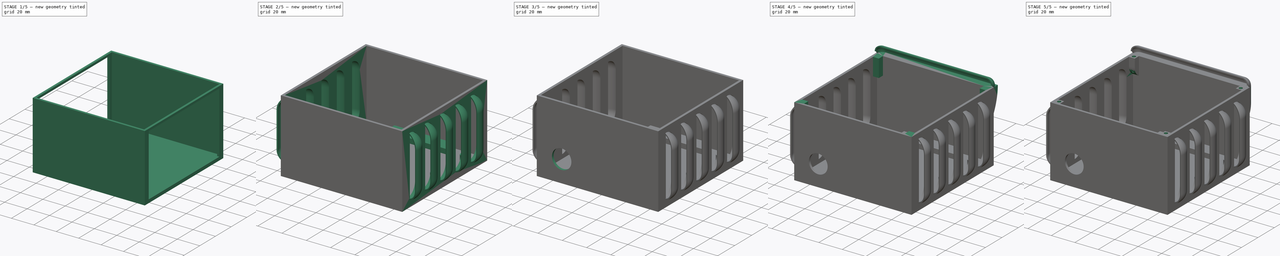
[diagram: build sequence overview — one tinted view per stage of 5, left to right]
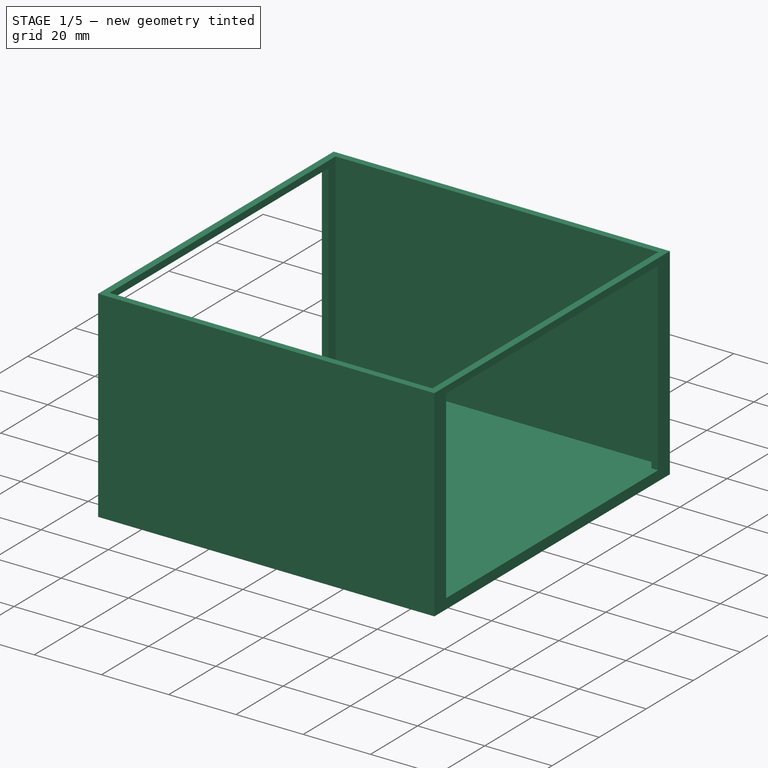
[diagram: stage 1 of 5 — iso view after this stage's code; geometry added in this stage tinted green]
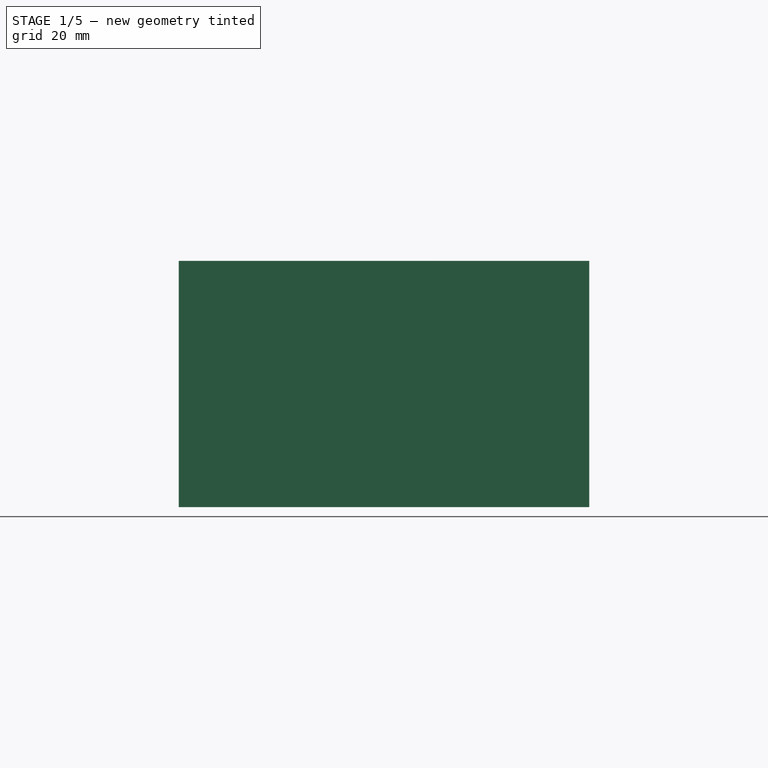
[diagram: stage 1 of 5 — front view after this stage's code; geometry added in this stage tinted green]
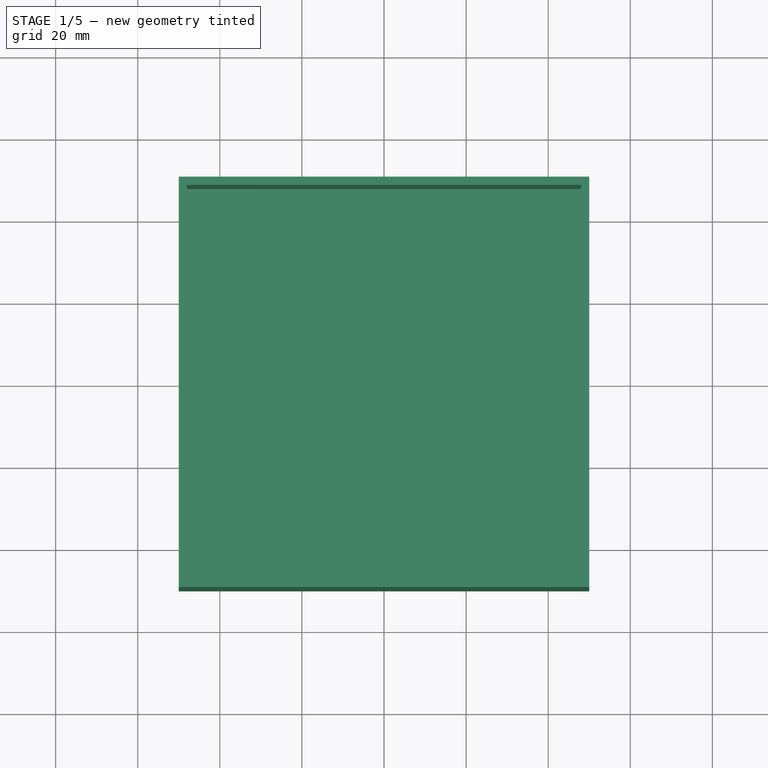
[diagram: stage 1 of 5 — top view after this stage's code; geometry added in this stage tinted green]
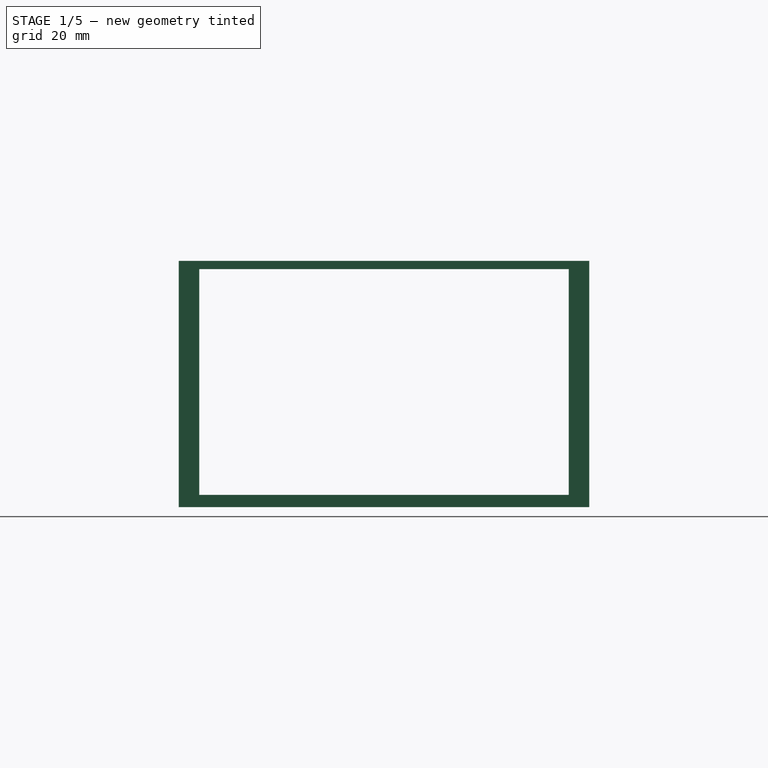
[diagram: stage 1 of 5 — right view after this stage's code; geometry added in this stage tinted green]
FCSTD DOCUMENT  (FreeCAD 1.0R39285 (Git))
Label: Enclosure box
License: All rights reserved
LicenseURL: https://en.wikipedia.org/wiki/All_rights_reserved
objects: Sketcher::SketchObject×24, PartDesign::Pocket×12, PartDesign::Pad×11, PartDesign::Revolution×2, PartDesign::Hole×2, PartDesign::Body×2, PartDesign::Mirrored×1, PartDesign::LinearPattern×1, PartDesign::MultiTransform×1
note: 137 computed .brp shape members not serialized (recipe doc carries the construction recipe); baked Part::Feature solids carry a one-line shape summary decoded from their .brp

FEATURE [Sketcher::SketchObject] Sketch006
  ArcFitTolerance = 1e-06
  AttachmentSupport = -> [XY_Plane001]
  FullyConstrained = true
  MakeInternals = false
  MapMode = 5
  sketch-geometry (4):
    g0: LineSegment StartX=-50 StartY=50 StartZ=0 EndX=-50 EndY=-50 EndZ=0
    g1: LineSegment StartX=-50 StartY=-50 StartZ=0 EndX=50 EndY=-50 EndZ=0
    g2: LineSegment StartX=50 StartY=-50 StartZ=0 EndX=50 EndY=50 EndZ=0
    g3: LineSegment StartX=50 StartY=50 StartZ=0 EndX=-50 EndY=50 EndZ=0
  constraints (10):
    c: Coincident(g0,g1)
    c: Coincident(g1,g2)
    c: Coincident(g2,g3)
    c: Coincident(g3,g0)
    c: Vertical(g2)
    c: Horizontal(g1)
    c: Distance(g0,g2) = 100
    c: Distance(g1,g3) = 100
    c: Symmetric(g2,g0,g-2)
    c: Symmetric(g0,g0,g-1)
FEATURE [PartDesign::Pad] Pad003
  Direction = (0,0,1)
  Length = 60
  Length2 = 10
  Profile = -> Sketch006
  ReferenceAxis = -> Sketch006 [N_Axis]
  Refine = true
  Suppressed = false
  Type = 0
FEATURE [Sketcher::SketchObject] Sketch007
  ArcFitTolerance = 1e-06
  AttachmentSupport = -> [Pad003]
  ExternalGeometry = -> [Pad003]
  FullyConstrained = true
  MakeInternals = false
  MapMode = 5
  Placement = pos=(0,0,60) rot=(0,0,1;0rad)
  sketch-geometry (4):
    g0: LineSegment StartX=-48 StartY=48 StartZ=0 EndX=-48 EndY=-48 EndZ=0
    g1: LineSegment StartX=-48 StartY=-48 StartZ=0 EndX=48 EndY=-48 EndZ=0
    g2: LineSegment StartX=48 StartY=-48 StartZ=0 EndX=48 EndY=48 EndZ=0
    g3: LineSegment StartX=48 StartY=48 StartZ=0 EndX=-48 EndY=48 EndZ=0
  constraints (10):
    c: Coincident(g0,g1)
    c: Coincident(g1,g2)
    c: Coincident(g2,g3)
    c: Coincident(g3,g0)
    c: Vertical(g2)
    c: Horizontal(g1)
    c: DistanceY(g0,g-4) = 2
    c: Symmetric(g0,g2,g-2)
    c: Symmetric(g0,g0,g-1)
    c: DistanceX(g-4,g0) = 2
FEATURE [PartDesign::Pocket] Pocket002
  BaseFeature = -> Pad003
  Direction = (0,0,-1)
  Length = 57
  Length2 = 5
  Profile = -> Sketch007
  ReferenceAxis = -> Sketch007 [N_Axis]
  Refine = true
  Suppressed = false
  Type = 0
FEATURE [Sketcher::SketchObject] Sketch008
  ArcFitTolerance = 1e-06
  AttachmentSupport = -> [Pocket002]
  ExternalGeometry = -> [Pocket002]
  FullyConstrained = true
  MakeInternals = false
  MapMode = 5
  Placement = pos=(-50,0,0) rot=(0.57735,-0.57735,-0.57735;2.0944rad)
  sketch-geometry (4):
    g0: LineSegment StartX=-45 StartY=58 StartZ=0 EndX=-45 EndY=3 EndZ=0
    g1: LineSegment StartX=-45 StartY=3 StartZ=0 EndX=45 EndY=3 EndZ=0
    g2: LineSegment StartX=45 StartY=3 StartZ=0 EndX=45 EndY=58 EndZ=0
    g3: LineSegment StartX=45 StartY=58 StartZ=0 EndX=-45 EndY=58 EndZ=0
  constraints (11):
    c: Coincident(g0,g1)
    c: Coincident(g1,g2)
    c: Coincident(g2,g3)
    c: Coincident(g3,g0)
    c: Vertical(g0)
    c: Vertical(g2)
    c: Horizontal(g1)
    c: Distance(g1,g-1) = 3
    c: Distance(g-3,g3) = 2
    c: Distance(g0,g-4) = 5
    c: Symmetric(g0,g2,g-2)
FEATURE [PartDesign::Pocket] Pocket003
  BaseFeature = -> Pocket002
  Direction = (1,0,0)
  Length = 100
  Length2 = 5
  Profile = -> Sketch008
  ReferenceAxis = -> Sketch008 [N_Axis]
  Refine = true
  Suppressed = false
  Type = 0
FEATURE [PartDesign::Body] Body001  label="Main Box"
  AllowCompound = false
  Group = -> [Sketch006,Pad003,Sketch007,Pocket002,Sketch008,Pocket003,Sketch009,Pad004,Sketch010,Revolution001,MultiTransform,Mirrored001,LinearPattern001,Sketch011,Pad005,Sketch012,Sketch013,Pad006,Pocket004,Sketch014,Pad007,Sketch015,Pad008,Hole,Hole001,Sketch016,Pocket005,Sketch017,Pad009,Sketch018,Revolution002,Sketch019,Pocket006,Sketch020,Pad010,Sketch021,Pad011,Sketch022,Pocket007,Sketch023,Pocket008,+7 more]
  Origin = -> Origin001
  Tip = -> Pocket012
FEATURE [Sketcher::SketchObject] Sketch
  ArcFitTolerance = 1e-06
  AttachmentSupport = -> [XY_Plane]
  FullyConstrained = true
  MakeInternals = false
  MapMode = 5
  sketch-geometry (4):
    g0: LineSegment StartX=-50 StartY=50 StartZ=0 EndX=-50 EndY=-50 EndZ=0
    g1: LineSegment StartX=-50 StartY=-50 StartZ=0 EndX=50 EndY=-50 EndZ=0
    g2: LineSegment StartX=50 StartY=-50 StartZ=0 EndX=50 EndY=50 EndZ=0
    g3: LineSegment StartX=50 StartY=50 StartZ=0 EndX=-50 EndY=50 EndZ=0
  constraints (10):
    c: Coincident(g0,g1)
    c: Coincident(g1,g2)
    c: Coincident(g2,g3)
    c: Coincident(g3,g0)
    c: Vertical(g2)
    c: Horizontal(g1)
    c: Distance(g0,g2) = 100
    c: Distance(g1,g3) = 100
    c: Symmetric(g0,g2,g-2)
    c: Symmetric(g0,g0,g-1)
FEATURE [PartDesign::Pad] Pad
  Direction = (0,0,1)
  Length = 1
  Length2 = 10
  Profile = -> Sketch
  ReferenceAxis = -> Sketch [N_Axis]
  Refine = true
  Suppressed = false
  Type = 0
FEATURE [Sketcher::SketchObject] Sketch027
  ArcFitTolerance = 1e-06
  AttachmentSupport = -> [Pad]
  ExternalGeometry = -> [Pad]
  FullyConstrained = true
  MakeInternals = false
  MapMode = 5
  Placement = pos=(0,0,1) rot=(0,0,1;0rad)
  sketch-geometry (12):
    g0: LineSegment StartX=-47.85 StartY=-42.75 StartZ=0 EndX=-47.85 EndY=42.75 EndZ=0
    g1: LineSegment StartX=-47.85 StartY=42.75 StartZ=0 EndX=-42.75 EndY=42.75 EndZ=0
    g2: LineSegment StartX=-42.75 StartY=42.75 StartZ=0 EndX=-42.75 EndY=47.85 EndZ=0
    g3: LineSegment StartX=-42.75 StartY=47.85 StartZ=0 EndX=42.75 EndY=47.85 EndZ=0
    g4: LineSegment StartX=42.75 StartY=47.85 StartZ=0 EndX=42.75 EndY=42.75 EndZ=0
    g5: LineSegment StartX=42.75 StartY=42.75 StartZ=0 EndX=47.85 EndY=42.75 EndZ=0
    g6: LineSegment StartX=47.85 StartY=42.75 StartZ=0 EndX=47.85 EndY=-42.75 EndZ=0
    g7: LineSegment StartX=47.85 StartY=-42.75 StartZ=0 EndX=42.75 EndY=-42.75 EndZ=0
    g8: LineSegment StartX=42.75 StartY=-42.75 StartZ=0 EndX=42.75 EndY=-47.85 EndZ=0
    g9: LineSegment StartX=42.75 StartY=-47.85 StartZ=0 EndX=-42.75 EndY=-47.85 EndZ=0
    g10: LineSegment StartX=-42.75 StartY=-47.85 StartZ=0 EndX=-42.75 EndY=-42.75 EndZ=0
    g11: LineSegment StartX=-42.75 StartY=-42.75 StartZ=0 EndX=-47.85 EndY=-42.75 EndZ=0
  constraints (34):
    c: Coincident(g0,g1)
    c: Horizontal(g1)
    c: Coincident(g1,g2)
    c: Vertical(g2)
    c: Coincident(g2,g3)
    c: Horizontal(g3)
    c: Coincident(g3,g4)
    c: Coincident(g4,g5)
    c: Coincident(g5,g6)
    c: Vertical(g6)
    c: Coincident(g6,g7)
    c: Coincident(g7,g8)
    c: Coincident(g8,g9)
    c: Coincident(g9,g10)
    c: Vertical(g10)
    c: Coincident(g10,g11)
    c: Coincident(g11,g0)
    c: Horizontal(g11)
    c: Horizontal(g5)
    c: Horizontal(g7)
    c: Vertical(g8)
    c: Vertical(g4)
    c: DistanceY(g2,g2) = 5.1
    c: DistanceX(g1,g1) = 5.1
    c: Symmetric(g9,g8,g-2)
    c: Symmetric(g0,g0,g-1)
    c: Distance(g-3,g0) = 2.15
    c: Distance(g-4,g9) = 2.15
    c: Equal(g2,g4)
    c: Equal(g4,g8)
    c: Equal(g8,g10)
    c: Equal(g1,g5)
    c: Equal(g5,g7)
    c: Equal(g7,g11)
FEATURE [PartDesign::Pad] Pad012
  BaseFeature = -> Pad
  Direction = (0,0,1)
  Length = 0.75
  Length2 = 10
  Profile = -> Sketch027
  ReferenceAxis = -> Sketch027 [N_Axis]
  Refine = true
  Suppressed = false
  Type = 0
FEATURE [Sketcher::SketchObject] Sketch028
  ArcFitTolerance = 1e-06
  AttachmentSupport = -> [Pad012]
  ExternalGeometry = -> [Pad012]
  FullyConstrained = true
  MakeInternals = false
  MapMode = 5
  Placement = pos=(0,0,1) rot=(0,0,1;0rad)
  sketch-geometry (4):
    g0: Circle CenterX=-45.25 CenterY=45.25 CenterZ=0 NormalX=0 NormalY=0 NormalZ=1 AngleXU=0 Radius=1.55
    g1: Circle CenterX=45.25 CenterY=45.25 CenterZ=0 NormalX=0 NormalY=0 NormalZ=1 AngleXU=0 Radius=1.55
    g2: Circle CenterX=45.25 CenterY=-45.25 CenterZ=0 NormalX=0 NormalY=0 NormalZ=1 AngleXU=0 Radius=1.55
    g3: Circle CenterX=-45.25 CenterY=-45.25 CenterZ=0 NormalX=0 NormalY=0 NormalZ=1 AngleXU=0 Radius=1.55
  constraints (12):
    c: Diameter(g0) = 3.1
    c: Diameter(g1) = 3.1
    c: Diameter(g2) = 3.1
    c: Diameter(g3) = 3.1
    c: Distance(g0,g-3) = 2.5
    c: Distance(g0,g-4) = 2.5
    c: Horizontal(g0,g1)
    c: Horizontal(g2,g3)
    c: Vertical(g3,g0)
    c: Vertical(g1,g2)
    c: Distance(g1,g-5) = 2.5
    c: Distance(g3,g-6) = 2.5
FEATURE [PartDesign::Pocket] Pocket
  BaseFeature = -> Pad012
  Direction = (0,0,-1)
  Length = 5
  Length2 = 5
  Profile = -> Sketch028
  ReferenceAxis = -> Sketch028 [N_Axis]
  Refine = true
  Suppressed = false
  Type = 0
FEATURE [PartDesign::Body] Body
  AllowCompound = false
  Group = -> [Sketch,Pad,Sketch027,Pad012,Sketch028,Pocket]
  Origin = -> Origin
  Tip = -> Pocket
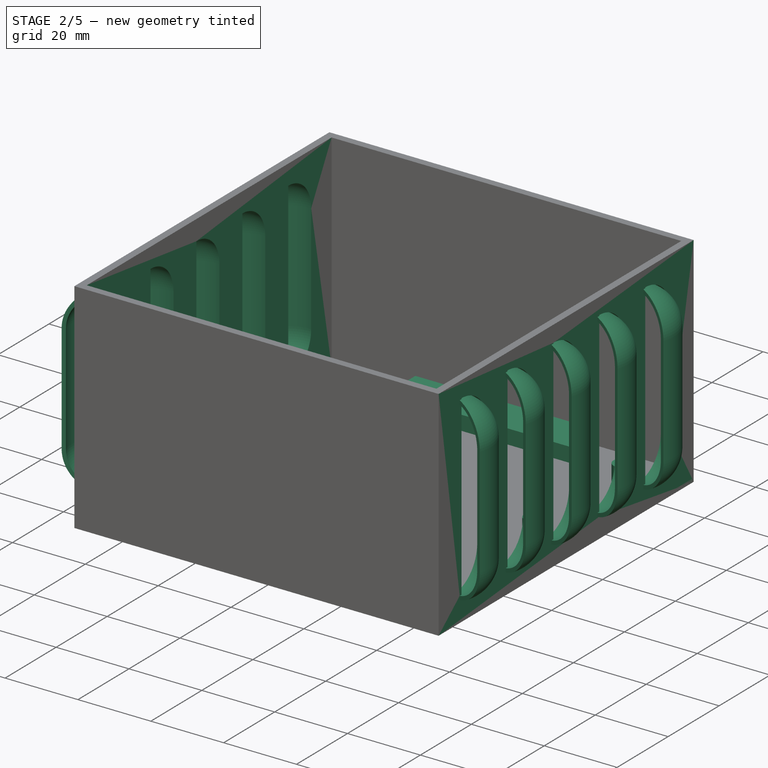
[diagram: stage 2 of 5 — iso view after this stage's code; geometry added in this stage tinted green]
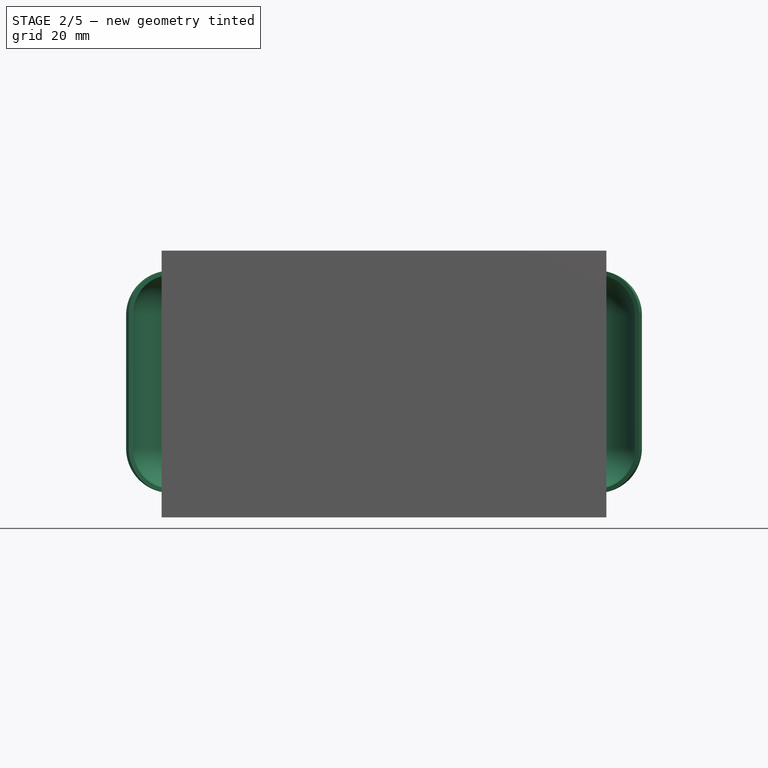
[diagram: stage 2 of 5 — front view after this stage's code; geometry added in this stage tinted green]
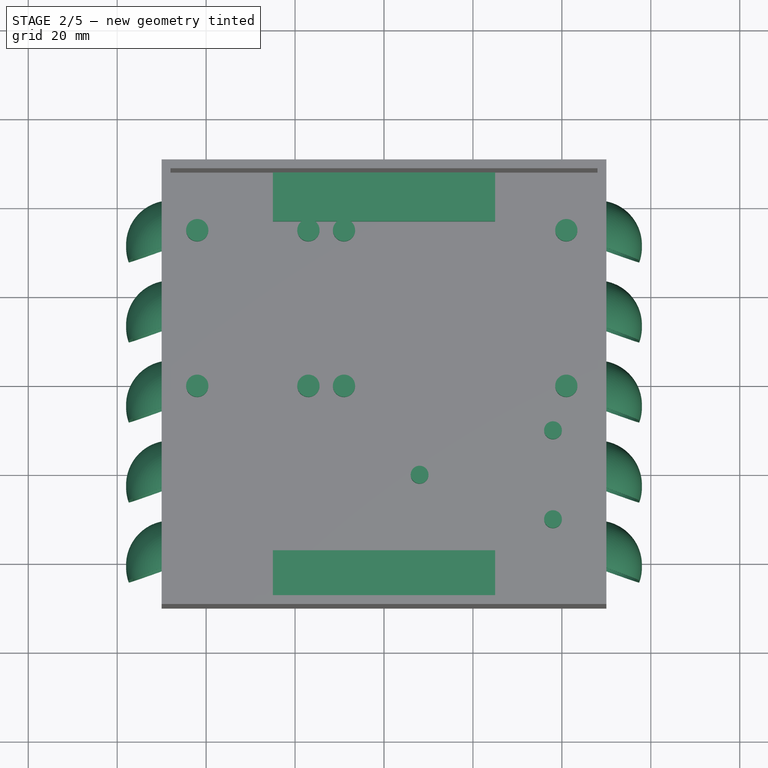
[diagram: stage 2 of 5 — top view after this stage's code; geometry added in this stage tinted green]
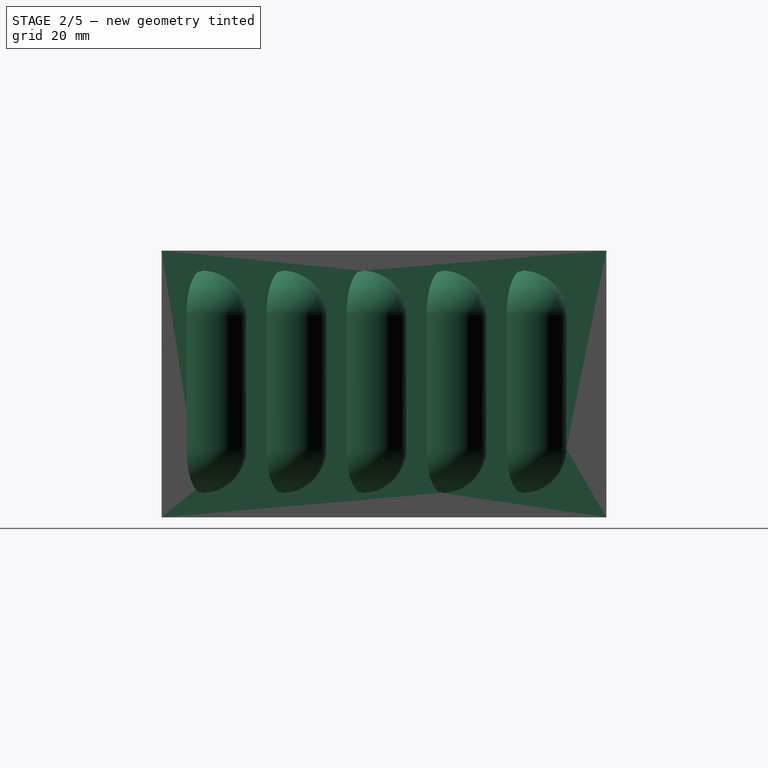
[diagram: stage 2 of 5 — right view after this stage's code; geometry added in this stage tinted green]
FEATURE [Sketcher::SketchObject] Sketch009
  ArcFitTolerance = 1e-06
  AttachmentSupport = -> [Pocket003]
  ExternalGeometry = -> [Pocket003]
  FullyConstrained = true
  MakeInternals = false
  MapMode = 5
  Placement = pos=(-50,0,0) rot=(0.57735,-0.57735,-0.57735;2.0944rad)
  sketch-geometry (8):
    g0: LineSegment StartX=45 StartY=58 StartZ=0 EndX=27 EndY=58 EndZ=0
    g1: LineSegment StartX=27 StartY=58 StartZ=0 EndX=27 EndY=3 EndZ=0
    g2: LineSegment StartX=27 StartY=3 StartZ=0 EndX=45 EndY=3 EndZ=0
    g3: LineSegment StartX=45 StartY=3 StartZ=0 EndX=45 EndY=58 EndZ=0
    g4: LineSegment StartX=41 StartY=5.5 StartZ=0 EndX=41 EndY=55.5 EndZ=0
    g5: ArcOfCircle CenterX=41 CenterY=45.5 CenterZ=0 NormalX=0 NormalY=0 NormalZ=1 AngleXU=0 Radius=10 StartAngle=1.5708 EndAngle=3.14159
    g6: LineSegment StartX=31 StartY=45.5 StartZ=0 EndX=31 EndY=15.5 EndZ=0
    g7: ArcOfCircle CenterX=41 CenterY=15.5 CenterZ=0 NormalX=0 NormalY=0 NormalZ=1 AngleXU=0 Radius=10 StartAngle=3.14159 EndAngle=4.71239
  constraints (21):
    c: Coincident(g0,g1)
    c: Coincident(g1,g2)
    c: Coincident(g2,g3)
    c: Coincident(g3,g0)
    c: Horizontal(g0)
    c: Horizontal(g2)
    c: Vertical(g1)
    c: Distance(g1,g3) = 18
    c: Coincident(g0,g-4)
    c: Coincident(g2,g-4)
    c: Vertical(g4)
    c: Perpendicular(g4,g5) = 1.5708
    c: Tangent(g5,g6) = -1.5708
    c: Tangent(g6,g7) = -1.5708
    c: Coincident(g7,g4)
    c: PointOnObject(g7,g4)
    c: Vertical(g6)
    c: DistanceX(g4,g0) = 4
    c: Radius(g5) = 10
    c: DistanceY(g4,g4) = 50
    c: DistanceY(g4,g0) = 2.5
FEATURE [PartDesign::Pad] Pad004
  BaseFeature = -> Pocket003
  Direction = (-1,0,0)
  Length = 2
  Length2 = 10
  Profile = -> Sketch009
  ReferenceAxis = -> Sketch009 [N_Axis]
  Refine = true
  Reversed = true
  Suppressed = false
  Type = 0
FEATURE [Sketcher::SketchObject] Sketch010
  ArcFitTolerance = 1e-06
  AttachmentSupport = -> [Pad004]
  ExternalGeometry = -> [Pad004]
  FullyConstrained = true
  MakeInternals = false
  MapMode = 5
  Placement = pos=(-48,0,0) rot=(0.57735,0.57735,0.57735;2.0944rad)
  sketch-geometry (8):
    g0: LineSegment StartX=-41 StartY=54.5 StartZ=0 EndX=-41 EndY=55.5 EndZ=0
    g1: ArcOfCircle CenterX=-41 CenterY=45.5 CenterZ=0 NormalX=0 NormalY=0 NormalZ=1 AngleXU=0 Radius=10 StartAngle=0 EndAngle=1.5708
    g2: LineSegment StartX=-31 StartY=45.5 StartZ=0 EndX=-31 EndY=15.5 EndZ=0
    g3: ArcOfCircle CenterX=-41 CenterY=15.5 CenterZ=0 NormalX=0 NormalY=0 NormalZ=1 AngleXU=0 Radius=10 StartAngle=4.71239 EndAngle=6.28319
    g4: LineSegment StartX=-41 StartY=5.5 StartZ=0 EndX=-41 EndY=6.5 EndZ=0
    g5: ArcOfCircle CenterX=-41 CenterY=15.5 CenterZ=0 NormalX=0 NormalY=0 NormalZ=1 AngleXU=0 Radius=9 StartAngle=4.71239 EndAngle=6.28319
    g6: LineSegment StartX=-32 StartY=15.5 StartZ=0 EndX=-32 EndY=45.5 EndZ=0
    g7: ArcOfCircle CenterX=-41 CenterY=45.5 CenterZ=0 NormalX=0 NormalY=0 NormalZ=1 AngleXU=0 Radius=9 StartAngle=0 EndAngle=1.5708
  constraints (20):
    c: PointOnObject(g0,g-3)
    c: Coincident(g0,g-3)
    c: Perpendicular(g0,g1) = 1.5708
    c: Tangent(g1,g2) = 1.5708
    c: Tangent(g2,g3) = 1.5708
    c: Coincident(g3,g-3)
    c: Coincident(g3,g4)
    c: Perpendicular(g4,g5) = 4.71239
    c: Tangent(g5,g6) = -1.5708
    c: Tangent(g6,g7) = -1.5708
    c: Coincident(g7,g0)
    c: Vertical(g6)
    c: Vertical(g2)
    c: PointOnObject(g4,g-3)
    c: Horizontal(g5,g2)
    c: Horizontal(g6,g1)
    c: DistanceY(g0,g0) = 1
    c: Equal(g4,g0)
    c: Radius(g3) = 10
    c: PointOnObject(g7,g-3)
FEATURE [PartDesign::Revolution] Revolution001
  Angle = 110
  Angle2 = 60
  Axis = (0,0,1)
  Base = (-48,-41,5.5)
  BaseFeature = -> Pad004
  Profile = -> Sketch010
  ReferenceAxis = -> Pad004 [Edge55]
  Refine = true
  Suppressed = false
  Type = 0
FEATURE [PartDesign::Mirrored] Mirrored001
  MirrorPlane = -> YZ_Plane001
  Refine = true
  Suppressed = false
  TransformMode = 0
FEATURE [PartDesign::LinearPattern] LinearPattern001
  Direction = -> Y_Axis001
  Length = 72
  Mode = 1
  Occurrences = 5
  Offset = 18
  Refine = true
  Suppressed = false
  TransformMode = 0
FEATURE [PartDesign::MultiTransform] MultiTransform
  BaseFeature = -> Revolution001
  Originals = -> [Revolution001,Pad004]
  Refine = true
  Suppressed = false
  TransformMode = 0
  Transformations = -> [Mirrored001,LinearPattern001]
FEATURE [Sketcher::SketchObject] Sketch011
  ArcFitTolerance = 1e-06
  AttachmentSupport = -> [MultiTransform]
  ExternalGeometry = -> [MultiTransform]
  FullyConstrained = true
  MakeInternals = false
  MapMode = 5
  Placement = pos=(0,0,3) rot=(0,0,1;0rad)
  sketch-geometry (11):
    g0: Circle CenterX=41 CenterY=4e-16 CenterZ=0 NormalX=0 NormalY=0 NormalZ=1 AngleXU=0 Radius=2.5
    g1: Circle CenterX=-9 CenterY=4e-16 CenterZ=0 NormalX=0 NormalY=0 NormalZ=1 AngleXU=0 Radius=2.5
    g2: Circle CenterX=-9 CenterY=35 CenterZ=0 NormalX=0 NormalY=0 NormalZ=1 AngleXU=0 Radius=2.5
    g3: Circle CenterX=41 CenterY=35 CenterZ=0 NormalX=0 NormalY=0 NormalZ=1 AngleXU=0 Radius=2.5
    g4: Circle CenterX=38 CenterY=-10 CenterZ=0 NormalX=0 NormalY=0 NormalZ=1 AngleXU=0 Radius=2
    g5: Circle CenterX=8 CenterY=-20 CenterZ=0 NormalX=0 NormalY=0 NormalZ=1 AngleXU=0 Radius=2
    g6: Circle CenterX=-42 CenterY=4e-16 CenterZ=0 NormalX=0 NormalY=0 NormalZ=1 AngleXU=0 Radius=2.5
    g7: Circle CenterX=-17 CenterY=4e-16 CenterZ=0 NormalX=0 NormalY=0 NormalZ=1 AngleXU=0 Radius=2.5
    g8: Circle CenterX=-42 CenterY=35 CenterZ=0 NormalX=0 NormalY=0 NormalZ=1 AngleXU=0 Radius=2.5
    g9: Circle CenterX=-17 CenterY=35 CenterZ=0 NormalX=0 NormalY=0 NormalZ=1 AngleXU=0 Radius=2.5
    g10: Circle CenterX=38 CenterY=-30 CenterZ=0 NormalX=0 NormalY=0 NormalZ=1 AngleXU=0 Radius=2
  constraints (34):
    c: Diameter(g2) = 5
    c: Diameter(g5) = 4
    c: DistanceY(g1,g2) = 35
    c: Horizontal(g2,g3)
    c: Horizontal(g1,g0)
    c: Vertical(g3,g0)
    c: Vertical(g1,g2)
    c: DistanceX(g1,g0) = 50
    c: Horizontal(g7,g6)
    c: Horizontal(g9,g8)
    c: Vertical(g8,g6)
    c: Vertical(g7,g9)
    c: DistanceX(g6,g7) = 25
    c: DistanceY(g6,g8) = 35
    c: DistanceX(g-5,g-5) = 0
    c: Vertical(g10,g4)
    c: DistanceY(g5,g4) = 10
    c: DistanceY(g10,g5) = 10
    c: DistanceX(g5,g10) = 30
    c: Horizontal(g7,g1)
    c: Distance(g10,g-5) = 10
    c: Distance(g0,g-5) = 7
    c: DistanceY(g4,g0) = 10
    c: DistanceX(g7,g1) = 8
    c: Distance(g10,g-3) = 18
    c: Equal(g2,g8)
    c: Equal(g2,g6)
    c: Equal(g7,g2)
    c: Equal(g9,g2)
    c: Equal(g2,g1)
    c: Equal(g2,g3)
    c: Equal(g0,g2)
    c: Equal(g5,g4)
    c: Equal(g5,g10)
FEATURE [PartDesign::Pad] Pad005
  BaseFeature = -> MultiTransform
  Direction = (0,0,1)
  Length = 5
  Length2 = 10
  Profile = -> Sketch011
  ReferenceAxis = -> Sketch011 [N_Axis]
  Refine = true
  Suppressed = false
  Type = 0
FEATURE [Sketcher::SketchObject] Sketch012
  ArcFitTolerance = 1e-06
  AttachmentSupport = -> [Pad005]
  ExternalGeometry = -> [Pad005]
  FullyConstrained = true
  MakeInternals = false
  MapMode = 5
  Placement = pos=(0,0,0) rot=(1,0,0;3.14159rad)
  sketch-geometry (8):
    g0: LineSegment StartX=-24 StartY=48 StartZ=0 EndX=-24 EndY=38 EndZ=0
    g1: LineSegment StartX=-24 StartY=38 StartZ=0 EndX=24 EndY=38 EndZ=0
    g2: LineSegment StartX=24 StartY=38 StartZ=0 EndX=24 EndY=48 EndZ=0
    g3: LineSegment StartX=24 StartY=48 StartZ=0 EndX=-24 EndY=48 EndZ=0
    g4: LineSegment StartX=-24 StartY=-38 StartZ=0 EndX=-24 EndY=-48 EndZ=0
    g5: LineSegment StartX=-24 StartY=-48 StartZ=0 EndX=24 EndY=-48 EndZ=0
    g6: LineSegment StartX=24 StartY=-48 StartZ=0 EndX=24 EndY=-38 EndZ=0
    g7: LineSegment StartX=24 StartY=-38 StartZ=0 EndX=-24 EndY=-38 EndZ=0
  constraints (22):
    c: Coincident(g0,g1)
    c: Coincident(g1,g2)
    c: Coincident(g2,g3)
    c: Coincident(g3,g0)
    c: Vertical(g0)
    c: Vertical(g2)
    c: Horizontal(g1)
    c: Distance(g0,g2) = 48
    c: Distance(g1,g3) = 10
    c: Coincident(g4,g5)
    c: Coincident(g5,g6)
    c: Coincident(g6,g7)
    c: Coincident(g7,g4)
    c: Vertical(g4)
    c: Vertical(g6)
    c: Horizontal(g5)
    c: Distance(g4,g6) = 48
    c: Symmetric(g4,g6,g-2)
    c: Symmetric(g0,g2,g-2)
    c: Distance(g-4,g5) = 2
    c: Distance(g-3,g3) = 2
    c: Equal(g0,g4)
FEATURE [Sketcher::SketchObject] Sketch013
  ArcFitTolerance = 1e-06
  AttachmentSupport = -> [Pad005]
  ExternalGeometry = -> [Pad005]
  FullyConstrained = true
  MakeInternals = false
  MapMode = 5
  Placement = pos=(0,0,3) rot=(0,0,1;0rad)
  sketch-geometry (8):
    g0: LineSegment StartX=-25 StartY=48 StartZ=0 EndX=-25 EndY=37 EndZ=0
    g1: LineSegment StartX=-25 StartY=37 StartZ=0 EndX=25 EndY=37 EndZ=0
    g2: LineSegment StartX=25 StartY=37 StartZ=0 EndX=25 EndY=48 EndZ=0
    g3: LineSegment StartX=25 StartY=48 StartZ=0 EndX=-25 EndY=48 EndZ=0
    g4: LineSegment StartX=-25 StartY=-48 StartZ=0 EndX=25 EndY=-48 EndZ=0
    g5: LineSegment StartX=25 StartY=-48 StartZ=0 EndX=25 EndY=-37 EndZ=0
    g6: LineSegment StartX=25 StartY=-37 StartZ=0 EndX=-25 EndY=-37 EndZ=0
    g7: LineSegment StartX=-25 StartY=-37 StartZ=0 EndX=-25 EndY=-48 EndZ=0
  constraints (22):
    c: Coincident(g0,g1)
    c: Coincident(g1,g2)
    c: Coincident(g2,g3)
    c: Coincident(g3,g0)
    c: Vertical(g0)
    c: Vertical(g2)
    c: Horizontal(g1)
    c: Distance(g0,g2) = 50
    c: Distance(g1,g3) = 11
    c: Coincident(g4,g5)
    c: Coincident(g5,g6)
    c: Coincident(g6,g7)
    c: Coincident(g7,g4)
    c: Horizontal(g4)
    c: Vertical(g5)
    c: Vertical(g7)
    c: Distance(g5,g7) = 50
    c: Distance(g4,g6) = 11
    c: Symmetric(g6,g5,g-2)
    c: Symmetric(g0,g2,g-2)
    c: PointOnObject(g4,g-4)
    c: PointOnObject(g2,g-3)
FEATURE [PartDesign::Pad] Pad006
  BaseFeature = -> Pad005
  Direction = (0,0,1)
  Length = 4
  Length2 = 10
  Profile = -> Sketch013
  ReferenceAxis = -> Sketch013 [N_Axis]
  Refine = true
  Suppressed = false
  Type = 0
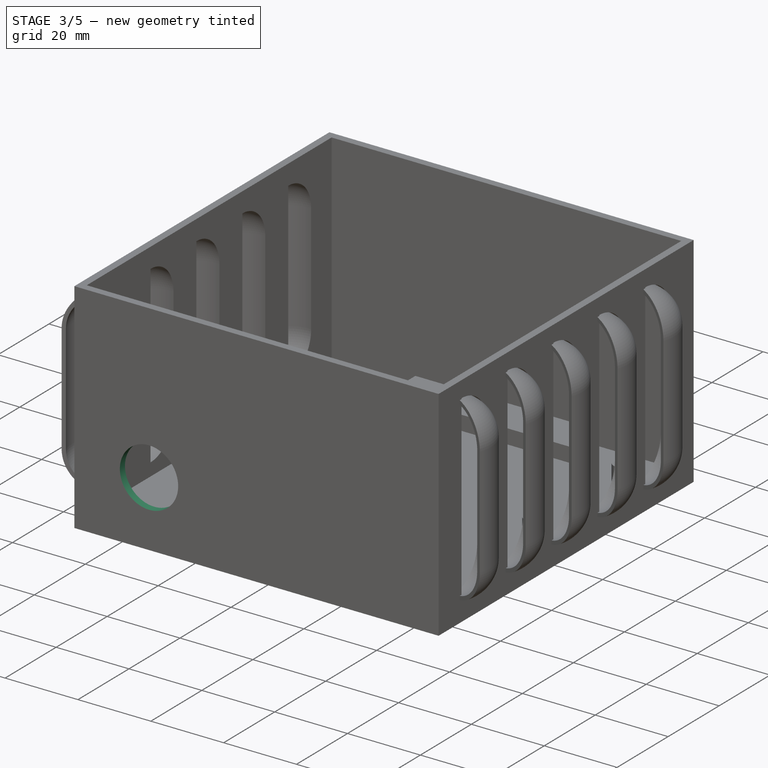
[diagram: stage 3 of 5 — iso view after this stage's code; geometry added in this stage tinted green]
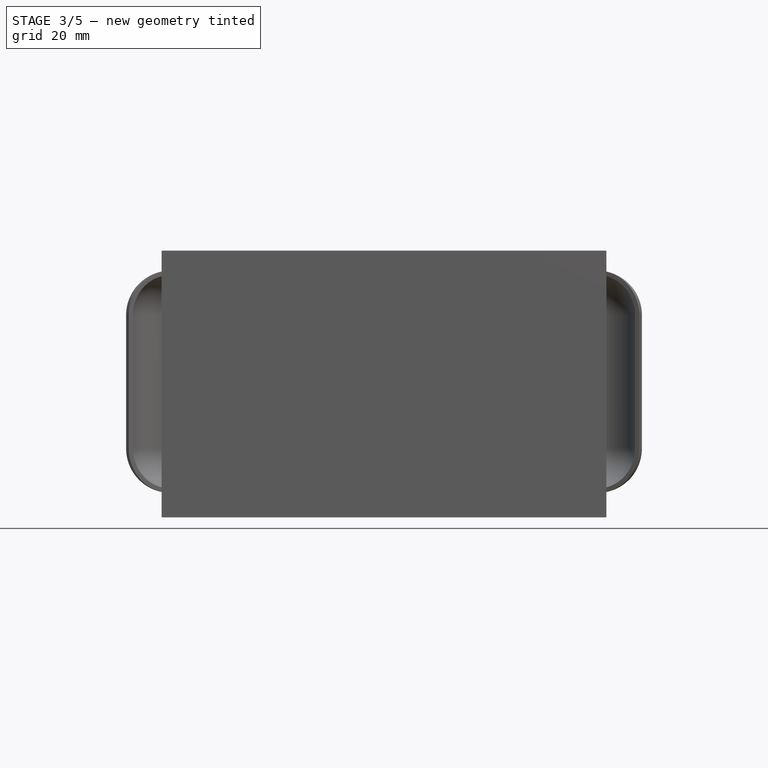
[diagram: stage 3 of 5 — front view after this stage's code; geometry added in this stage tinted green]
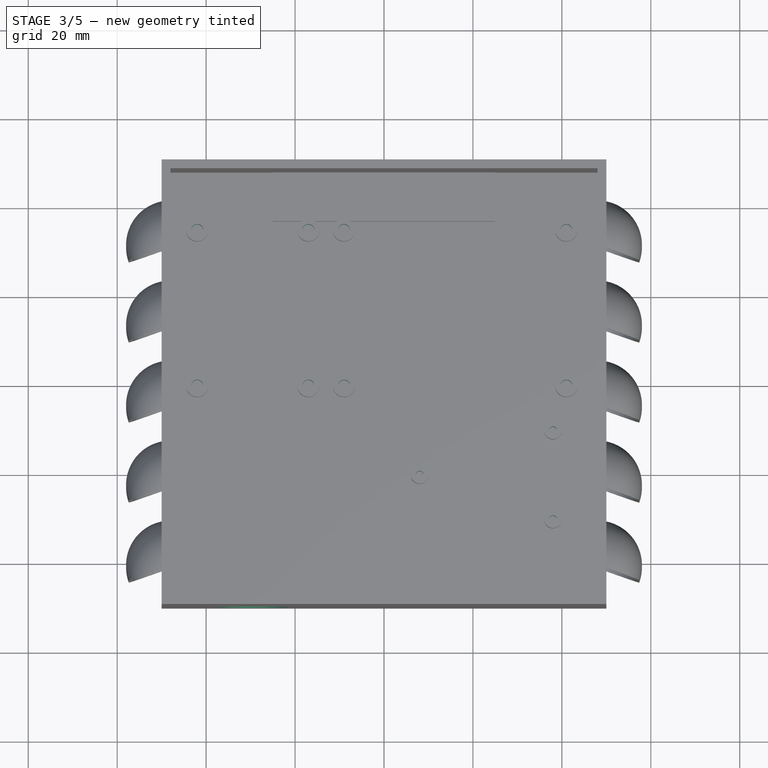
[diagram: stage 3 of 5 — top view after this stage's code; geometry added in this stage tinted green]
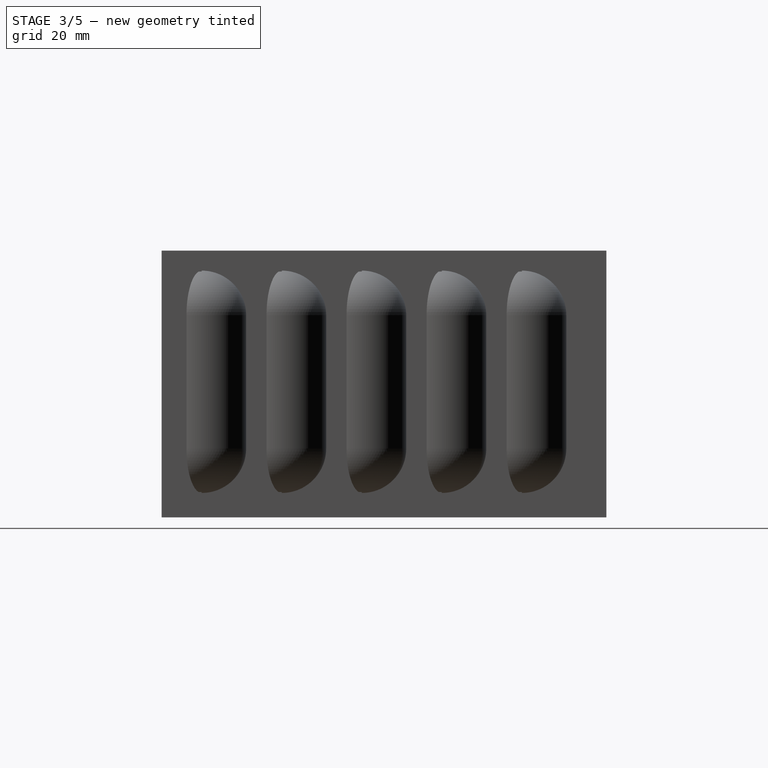
[diagram: stage 3 of 5 — right view after this stage's code; geometry added in this stage tinted green]
FEATURE [PartDesign::Pocket] Pocket004
  BaseFeature = -> Pad006
  Direction = (0,0,1)
  Length = 5
  Length2 = 5
  Profile = -> Sketch012
  ReferenceAxis = -> Sketch012 [N_Axis]
  Refine = true
  Suppressed = false
  Type = 0
FEATURE [Sketcher::SketchObject] Sketch014
  ArcFitTolerance = 1e-06
  AttachmentSupport = -> [Pocket004]
  ExternalGeometry = -> [Pocket004]
  FullyConstrained = true
  MakeInternals = false
  MapMode = 5
  Placement = pos=(0,-48,0) rot=(0,0.707107,0.707107;3.14159rad)
  sketch-geometry (4):
    g0: LineSegment StartX=20 StartY=0 StartZ=0 EndX=20 EndY=3 EndZ=0
    g1: LineSegment StartX=20 StartY=3 StartZ=0 EndX=-20 EndY=3 EndZ=0
    g2: LineSegment StartX=-20 StartY=3 StartZ=0 EndX=-20 EndY=0 EndZ=0
    g3: LineSegment StartX=-20 StartY=0 StartZ=0 EndX=20 EndY=0 EndZ=0
  constraints (11):
    c: Coincident(g0,g1)
    c: Coincident(g1,g2)
    c: Coincident(g2,g3)
    c: Coincident(g3,g0)
    c: Vertical(g0)
    c: Vertical(g2)
    c: Horizontal(g1)
    c: Distance(g0,g2) = 40
    c: Distance(g1,g3) = 3
    c: PointOnObject(g0,g-3)
    c: Symmetric(g0,g2,g-2)
FEATURE [PartDesign::Pad] Pad007
  BaseFeature = -> Pocket004
  Direction = (0,1,-2e-16)
  Length = 7
  Length2 = 10
  Profile = -> Sketch014
  ReferenceAxis = -> Sketch014 [N_Axis]
  Refine = true
  Suppressed = false
  Type = 2
FEATURE [Sketcher::SketchObject] Sketch015
  ArcFitTolerance = 1e-06
  AttachmentSupport = -> [Pad007]
  ExternalGeometry = -> [Pad007]
  FullyConstrained = true
  MakeInternals = false
  MapMode = 5
  Placement = pos=(0,38,0) rot=(0,0.707107,0.707107;3.14159rad)
  sketch-geometry (4):
    g0: LineSegment StartX=-20 StartY=0 StartZ=0 EndX=20 EndY=0 EndZ=0
    g1: LineSegment StartX=20 StartY=0 StartZ=0 EndX=20 EndY=3 EndZ=0
    g2: LineSegment StartX=20 StartY=3 StartZ=0 EndX=-20 EndY=3 EndZ=0
    g3: LineSegment StartX=-20 StartY=3 StartZ=0 EndX=-20 EndY=0 EndZ=0
  constraints (11):
    c: Coincident(g0,g1)
    c: Coincident(g1,g2)
    c: Coincident(g2,g3)
    c: Coincident(g3,g0)
    c: Vertical(g1)
    c: Vertical(g3)
    c: Distance(g1,g3) = 40
    c: Distance(g0,g2) = 3
    c: PointOnObject(g0,g-3)
    c: Symmetric(g0,g0,g-2)
    c: Horizontal(g2)
FEATURE [PartDesign::Pad] Pad008
  BaseFeature = -> Pad007
  Direction = (0,1,-2e-16)
  Length = 7
  Length2 = 10
  Profile = -> Sketch015
  ReferenceAxis = -> Sketch015 [N_Axis]
  Refine = true
  Suppressed = false
  Type = 2
FEATURE [PartDesign::Hole] Hole
  BaseFeature = -> Pad008
  CustomThreadClearance = 0
  Depth = 6
  DepthType = 0
  Diameter = 2.7
  DrillForDepth = false
  DrillPoint = 0
  DrillPointAngle = 118
  HoleCutCountersinkAngle = 90
  HoleCutCustomValues = false
  HoleCutDepth = 0
  HoleCutDiameter = 6.1
  HoleCutType = 0
  ModelThread = false
  Profile = -> Pad008 [Face166,Face163,Face172,Face170,Face171,Face164,Face165,Face162]
  Refine = true
  Suppressed = false
  Tapered = false
  TaperedAngle = 90
  ThreadClass = 0
  ThreadDepth = 6
  ThreadDepthType = 0
  ThreadDirection = 0
  ThreadFit = 0
  ThreadSize = 0
  ThreadType = 0
  Threaded = false
  UseCustomThreadClearance = false
FEATURE [PartDesign::Hole] Hole001
  BaseFeature = -> Hole
  CustomThreadClearance = 0
  Depth = 6
  DepthType = 0
  Diameter = 1.7
  DrillForDepth = false
  DrillPoint = 0
  DrillPointAngle = 118
  HoleCutCountersinkAngle = 90
  HoleCutCustomValues = false
  HoleCutDepth = 0
  HoleCutDiameter = 6.1
  HoleCutType = 0
  ModelThread = false
  Profile = -> Hole [Face185,Face186,Face184]
  Refine = true
  Suppressed = false
  Tapered = false
  TaperedAngle = 90
  ThreadClass = 0
  ThreadDepth = 6
  ThreadDepthType = 0
  ThreadDirection = 0
  ThreadFit = 0
  ThreadSize = 0
  ThreadType = 0
  Threaded = false
  UseCustomThreadClearance = false
FEATURE [Sketcher::SketchObject] Sketch016
  ArcFitTolerance = 1e-06
  AttachmentSupport = -> [Hole001]
  ExternalGeometry = -> [Hole001]
  FullyConstrained = true
  MakeInternals = false
  MapMode = 5
  Placement = pos=(0,-50,0) rot=(1,0,0;1.5708rad)
  sketch-geometry (1):
    g0: Circle CenterX=-29.5 CenterY=18 CenterZ=0 NormalX=0 NormalY=0 NormalZ=1 AngleXU=0 Radius=8
  constraints (3):
    c: Diameter(g0) = 16
    c: Distance(g0,g-3) = 20.5
    c: Distance(g0,g-1) = 18
FEATURE [PartDesign::Pocket] Pocket005
  BaseFeature = -> Hole001
  Direction = (0,1,-2e-16)
  Length = 3
  Length2 = 5
  Profile = -> Sketch016
  ReferenceAxis = -> Sketch016 [N_Axis]
  Refine = true
  Suppressed = false
  Type = 0
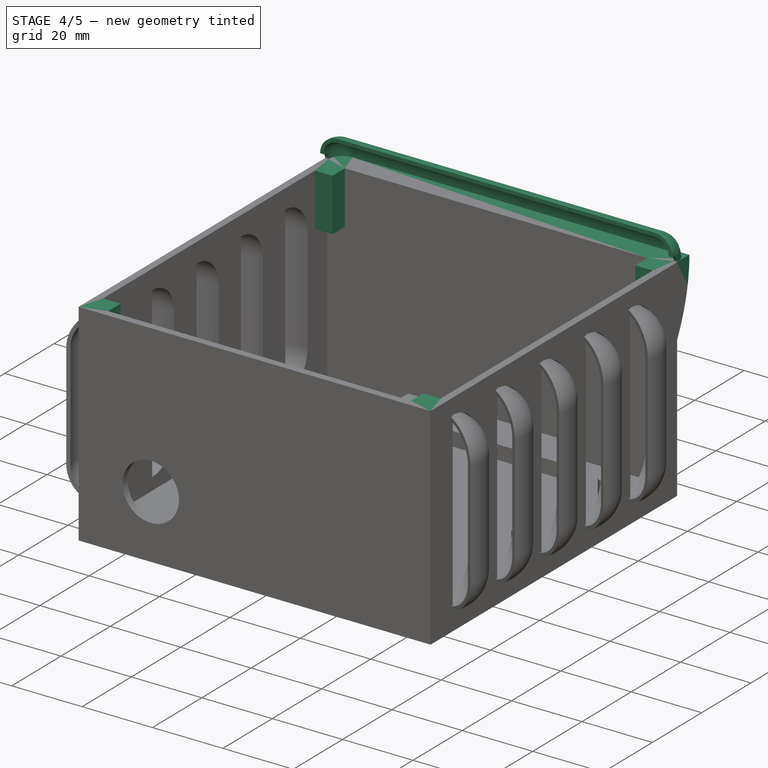
[diagram: stage 4 of 5 — iso view after this stage's code; geometry added in this stage tinted green]
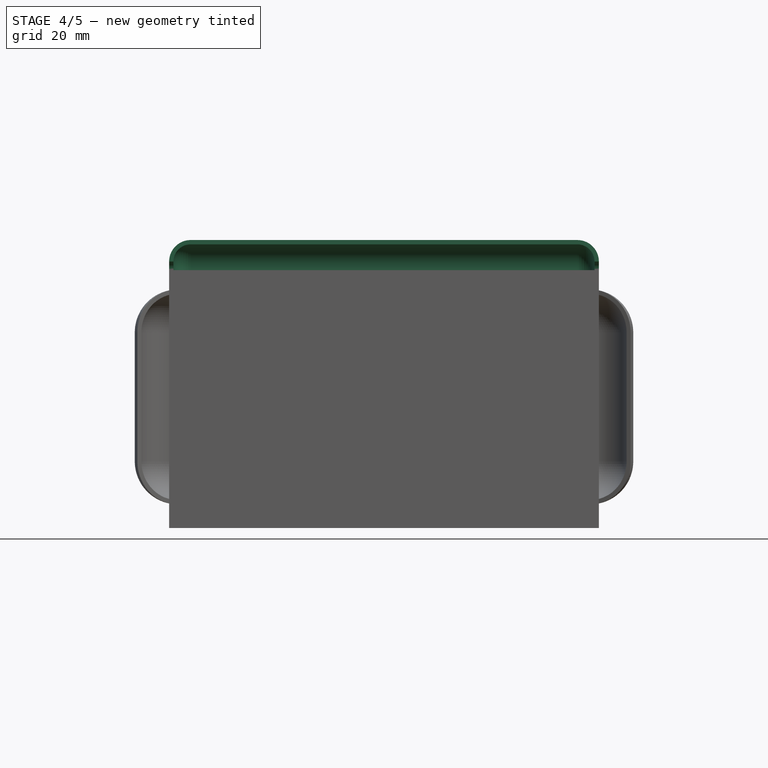
[diagram: stage 4 of 5 — front view after this stage's code; geometry added in this stage tinted green]
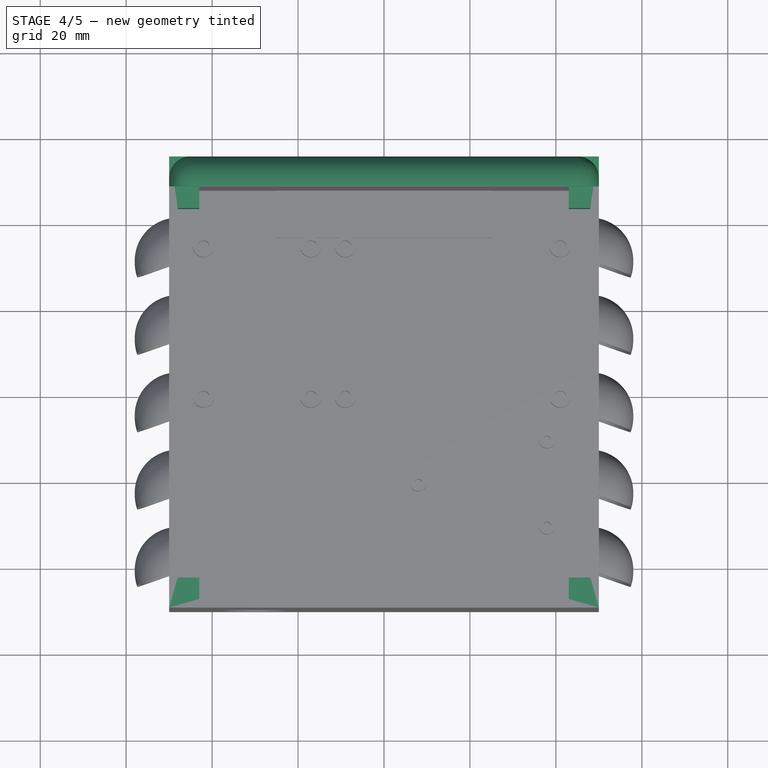
[diagram: stage 4 of 5 — top view after this stage's code; geometry added in this stage tinted green]
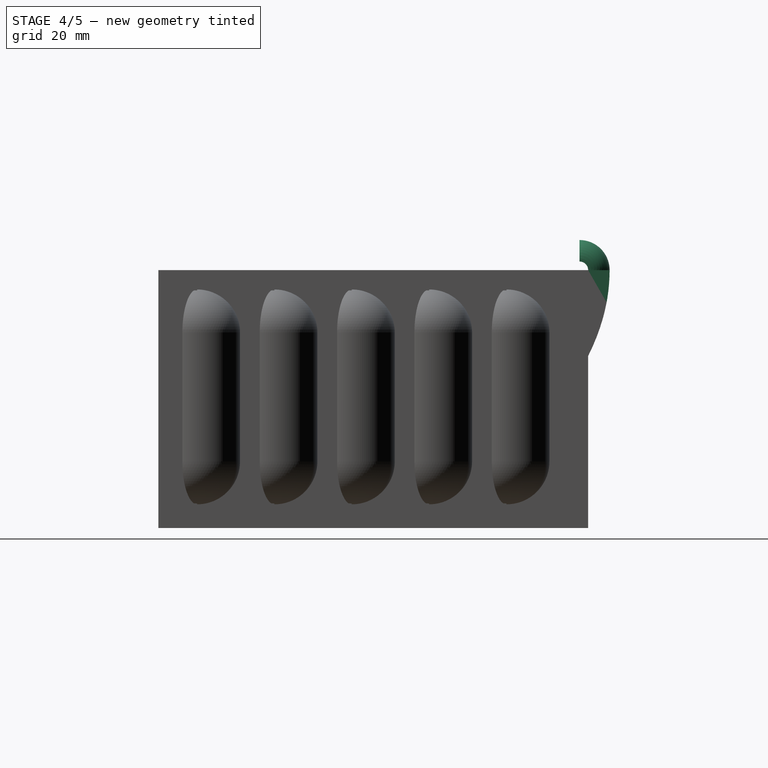
[diagram: stage 4 of 5 — right view after this stage's code; geometry added in this stage tinted green]
FEATURE [Sketcher::SketchObject] Sketch017
  ArcFitTolerance = 1e-06
  AttachmentSupport = -> [Pocket005]
  ExternalGeometry = -> [Pocket005]
  FullyConstrained = true
  MakeInternals = false
  MapMode = 5
  Placement = pos=(0,50,0) rot=(0,0.707107,0.707107;3.14159rad)
  sketch-geometry (4):
    g0: LineSegment StartX=-50 StartY=60 StartZ=0 EndX=-50 EndY=40 EndZ=0
    g1: LineSegment StartX=-50 StartY=40 StartZ=0 EndX=50 EndY=40 EndZ=0
    g2: LineSegment StartX=50 StartY=40 StartZ=0 EndX=50 EndY=60 EndZ=0
    g3: LineSegment StartX=50 StartY=60 StartZ=0 EndX=-50 EndY=60 EndZ=0
  constraints (11):
    c: Coincident(g0,g1)
    c: Coincident(g1,g2)
    c: Coincident(g2,g3)
    c: Coincident(g3,g0)
    c: Vertical(g0)
    c: Vertical(g2)
    c: Horizontal(g1)
    c: Horizontal(g3)
    c: Distance(g1,g3) = 20
    c: Coincident(g0,g-5)
    c: PointOnObject(g1,g-4)
FEATURE [PartDesign::Pad] Pad009
  BaseFeature = -> Pocket005
  Direction = (0,1,-2e-16)
  Length = 5
  Length2 = 10
  Profile = -> Sketch017
  ReferenceAxis = -> Sketch017 [N_Axis]
  Refine = true
  Suppressed = false
  Type = 0
FEATURE [Sketcher::SketchObject] Sketch018
  ArcFitTolerance = 1e-06
  AttachmentSupport = -> [Pad009]
  ExternalGeometry = -> [Pad009]
  FullyConstrained = true
  MakeInternals = false
  MapMode = 5
  Placement = pos=(0,0,60) rot=(0,0,1;0rad)
  sketch-geometry (8):
    g0: LineSegment StartX=45 StartY=55 StartZ=0 EndX=-45 EndY=55 EndZ=0
    g1: ArcOfCircle CenterX=-45 CenterY=50 CenterZ=0 NormalX=0 NormalY=0 NormalZ=1 AngleXU=0 Radius=5 StartAngle=1.5708 EndAngle=3.14159
    g2: LineSegment StartX=-50 StartY=50 StartZ=0 EndX=-49 EndY=50 EndZ=0
    g3: ArcOfCircle CenterX=-45 CenterY=50 CenterZ=0 NormalX=0 NormalY=0 NormalZ=1 AngleXU=0 Radius=4 StartAngle=1.5708 EndAngle=3.14159
    g4: LineSegment StartX=-45 StartY=54 StartZ=0 EndX=45 EndY=54 EndZ=0
    g5: ArcOfCircle CenterX=45 CenterY=50 CenterZ=0 NormalX=0 NormalY=0 NormalZ=1 AngleXU=0 Radius=4 StartAngle=8e-16 EndAngle=1.5708
    g6: LineSegment StartX=49 StartY=50 StartZ=0 EndX=50 EndY=50 EndZ=0
    g7: ArcOfCircle CenterX=45 CenterY=50 CenterZ=0 NormalX=0 NormalY=0 NormalZ=1 AngleXU=0 Radius=5 StartAngle=0 EndAngle=1.5708
  constraints (19):
    c: PointOnObject(g0,g-4)
    c: Symmetric(g0,g0,g-2)
    c: Tangent(g0,g1) = -1.5708
    c: Coincident(g1,g2)
    c: Perpendicular(g2,g3) = 4.71239
    c: Tangent(g3,g4) = 1.5708
    c: Tangent(g4,g5) = 1.5708
    c: Horizontal(g6)
    c: Perpendicular(g6,g7) = 1.5708
    c: Horizontal(g2)
    c: Horizontal(g4)
    c: PointOnObject(g6,g-6)
    c: PointOnObject(g1,g-5)
    c: DistanceX(g2,g2) = 1
    c: Coincident(g5,g6)
    c: Coincident(g1,g3)
    c: Coincident(g7,g5)
    c: Radius(g1) = 5
    c: Tangent(g7,g0) = -1.5708
FEATURE [PartDesign::Revolution] Revolution002
  Angle = 90
  Angle2 = 60
  Axis = (-1,0,0)
  Base = (48,48,60)
  BaseFeature = -> Pad009
  Profile = -> Sketch018
  ReferenceAxis = -> Pad009 [Edge492]
  Refine = true
  Reversed = true
  Suppressed = false
  Type = 0
FEATURE [Sketcher::SketchObject] Sketch019
  ArcFitTolerance = 1e-06
  AttachmentSupport = -> [Revolution002]
  ExternalGeometry = -> [Revolution002]
  FullyConstrained = true
  MakeInternals = false
  MapMode = 5
  Placement = pos=(50,0,0) rot=(0.57735,0.57735,0.57735;2.0944rad)
  sketch-geometry (8):
    g0: Circle [constr] CenterX=50 CenterY=40 CenterZ=0 NormalX=0 NormalY=0 NormalZ=1 AngleXU=0 Radius=1
    g1: Circle [constr] CenterX=55 CenterY=50 CenterZ=0 NormalX=0 NormalY=0 NormalZ=1 AngleXU=0 Radius=1
    g2: Circle [constr] CenterX=55 CenterY=60 CenterZ=0 NormalX=0 NormalY=0 NormalZ=1 AngleXU=0 Radius=1
    g3: BSplineCurve PolesCount=3 KnotsCount=2 Degree=2 IsPeriodic=0
    g4: GeomPoint [constr] X=50 Y=40 Z=0
    g5: GeomPoint [constr] X=55 Y=60 Z=0
    g6: LineSegment StartX=55 StartY=60 StartZ=0 EndX=55 EndY=40 EndZ=0
    g7: LineSegment StartX=55 StartY=40 StartZ=0 EndX=50 EndY=40 EndZ=0
  constraints (15):
    c: Weight(g0) = 1
    c: Equal(g0,g1)
    c: Equal(g0,g2)
    c: InternalAlignment(g0,g3)
    c: InternalAlignment(g1,g3)
    c: InternalAlignment(g2,g3)
    c: InternalAlignment(g4,g3)
    c: InternalAlignment(g5,g3)
    c: Coincident(g0,g-3)
    c: Symmetric(g-4,g-4,g1)
    c: Coincident(g2,g-4)
    c: Coincident(g6,g3)
    c: Coincident(g6,g-4)
    c: Coincident(g7,g6)
    c: Coincident(g7,g3)
FEATURE [PartDesign::Pocket] Pocket006
  BaseFeature = -> Revolution002
  Direction = (-1,0,0)
  Length = 100
  Length2 = 5
  Profile = -> Sketch019
  ReferenceAxis = -> Sketch019 [N_Axis]
  Refine = true
  Suppressed = false
  Type = 0
FEATURE [Sketcher::SketchObject] Sketch020
  ArcFitTolerance = 1e-06
  AttachmentSupport = -> [Pocket006]
  ExternalGeometry = -> [Pocket006]
  FullyConstrained = true
  MakeInternals = false
  MapMode = 5
  Placement = pos=(0,48,0) rot=(1,0,0;1.5708rad)
  sketch-geometry (8):
    g0: LineSegment StartX=-48 StartY=60 StartZ=0 EndX=-48 EndY=45 EndZ=0
    g1: LineSegment StartX=-48 StartY=45 StartZ=0 EndX=-43 EndY=45 EndZ=0
    g2: LineSegment StartX=-43 StartY=45 StartZ=0 EndX=-43 EndY=60 EndZ=0
    g3: LineSegment StartX=-43 StartY=60 StartZ=0 EndX=-48 EndY=60 EndZ=0
    g4: LineSegment StartX=48 StartY=60 StartZ=0 EndX=43 EndY=60 EndZ=0
    g5: LineSegment StartX=43 StartY=60 StartZ=0 EndX=43 EndY=45 EndZ=0
    g6: LineSegment StartX=43 StartY=45 StartZ=0 EndX=48 EndY=45 EndZ=0
    g7: LineSegment StartX=48 StartY=45 StartZ=0 EndX=48 EndY=60 EndZ=0
  constraints (22):
    c: Coincident(g0,g1)
    c: Coincident(g1,g2)
    c: Coincident(g2,g3)
    c: Coincident(g3,g0)
    c: Vertical(g0)
    c: Vertical(g2)
    c: Horizontal(g1)
    c: Horizontal(g3)
    c: Distance(g0,g2) = 5
    c: Distance(g1,g3) = 15
    c: Coincident(g0,g-4)
    c: Coincident(g4,g5)
    c: Coincident(g5,g6)
    c: Coincident(g6,g7)
    c: Coincident(g7,g4)
    c: Horizontal(g4)
    c: Horizontal(g6)
    c: Vertical(g5)
    c: Vertical(g7)
    c: Distance(g5,g7) = 5
    c: Distance(g4,g6) = 15
    c: Coincident(g4,g-3)
FEATURE [PartDesign::Pad] Pad010
  BaseFeature = -> Pocket006
  Direction = (0,-1,2e-16)
  Length = 5
  Length2 = 10
  Profile = -> Sketch020
  ReferenceAxis = -> Sketch020 [N_Axis]
  Refine = true
  Suppressed = false
  Type = 0
FEATURE [Sketcher::SketchObject] Sketch021
  ArcFitTolerance = 1e-06
  AttachmentSupport = -> [Pad010]
  ExternalGeometry = -> [Pad010]
  FullyConstrained = true
  MakeInternals = false
  MapMode = 5
  Placement = pos=(0,-48,0) rot=(0,0.707107,0.707107;3.14159rad)
  sketch-geometry (8):
    g0: LineSegment StartX=-48 StartY=60 StartZ=0 EndX=-48 EndY=45 EndZ=0
    g1: LineSegment StartX=-48 StartY=45 StartZ=0 EndX=-43 EndY=45 EndZ=0
    g2: LineSegment StartX=-43 StartY=45 StartZ=0 EndX=-43 EndY=60 EndZ=0
    g3: LineSegment StartX=-43 StartY=60 StartZ=0 EndX=-48 EndY=60 EndZ=0
    g4: LineSegment StartX=48 StartY=60 StartZ=0 EndX=43 EndY=60 EndZ=0
    g5: LineSegment StartX=43 StartY=60 StartZ=0 EndX=43 EndY=45 EndZ=0
    g6: LineSegment StartX=43 StartY=45 StartZ=0 EndX=48 EndY=45 EndZ=0
    g7: LineSegment StartX=48 StartY=45 StartZ=0 EndX=48 EndY=60 EndZ=0
  constraints (22):
    c: Coincident(g0,g1)
    c: Coincident(g1,g2)
    c: Coincident(g2,g3)
    c: Coincident(g3,g0)
    c: Vertical(g0)
    c: Vertical(g2)
    c: Horizontal(g1)
    c: Horizontal(g3)
    c: Distance(g0,g2) = 5
    c: Distance(g1,g3) = 15
    c: Coincident(g0,g-3)
    c: Coincident(g4,g5)
    c: Coincident(g5,g6)
    c: Coincident(g6,g7)
    c: Coincident(g7,g4)
    c: Horizontal(g4)
    c: Horizontal(g6)
    c: Vertical(g5)
    c: Vertical(g7)
    c: Distance(g5,g7) = 5
    c: Distance(g4,g6) = 15
    c: Coincident(g4,g-3)
FEATURE [PartDesign::Pad] Pad011
  BaseFeature = -> Pad010
  Direction = (0,1,-2e-16)
  Length = 5
  Length2 = 10
  Profile = -> Sketch021
  ReferenceAxis = -> Sketch021 [N_Axis]
  Refine = true
  Suppressed = false
  Type = 0
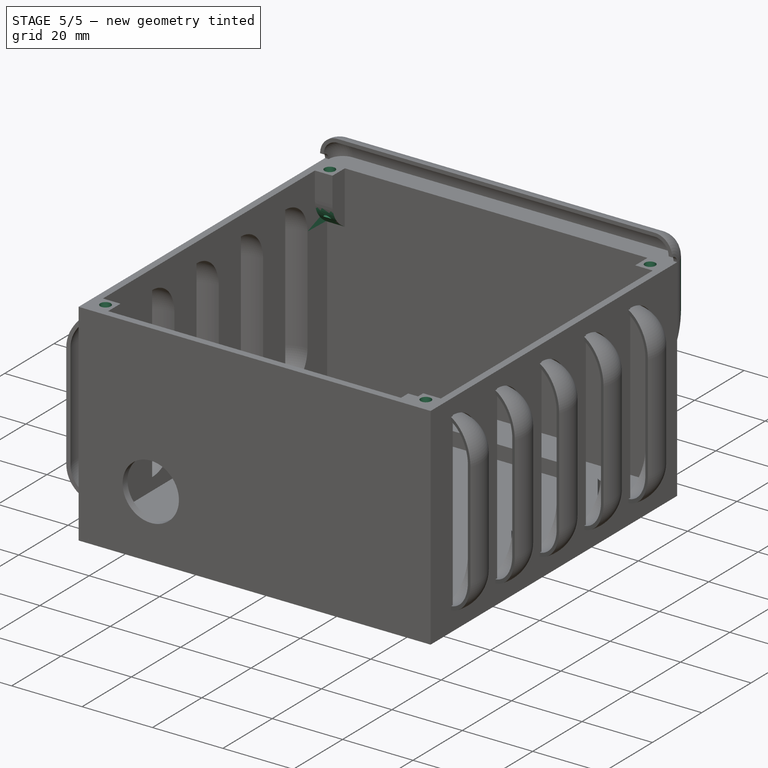
[diagram: stage 5 of 5 — iso view after this stage's code; geometry added in this stage tinted green]
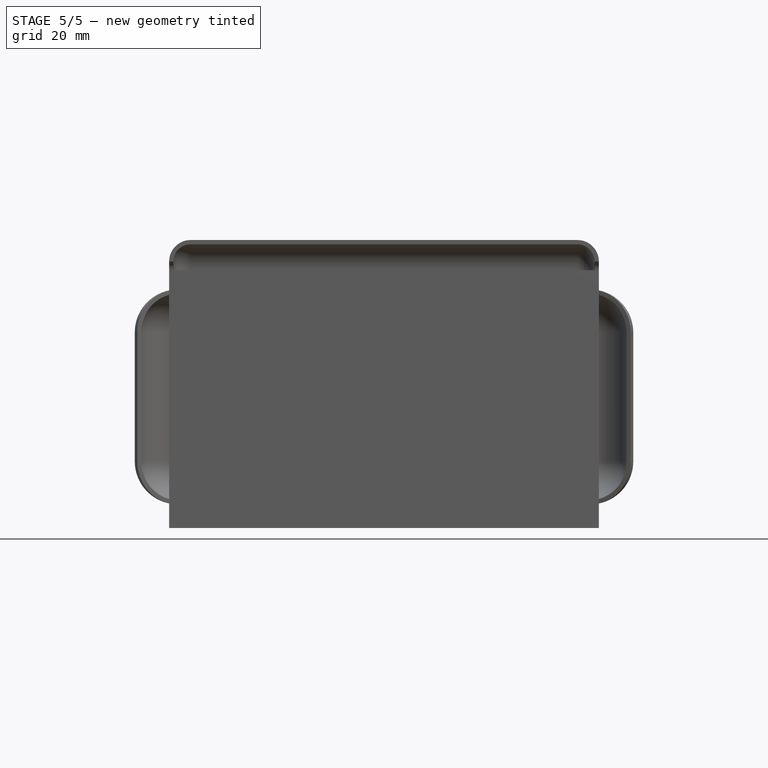
[diagram: stage 5 of 5 — front view after this stage's code; geometry added in this stage tinted green]
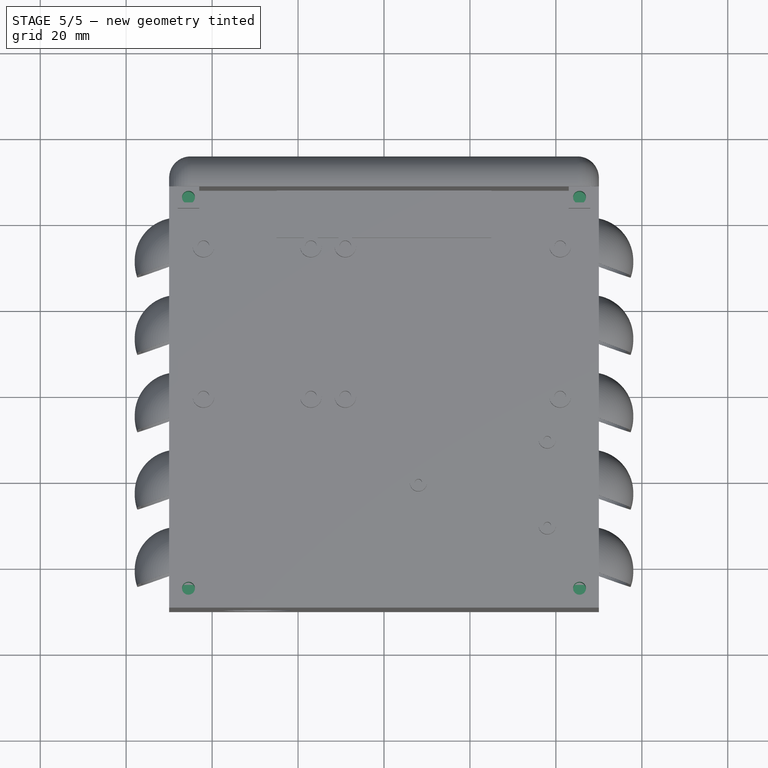
[diagram: stage 5 of 5 — top view after this stage's code; geometry added in this stage tinted green]
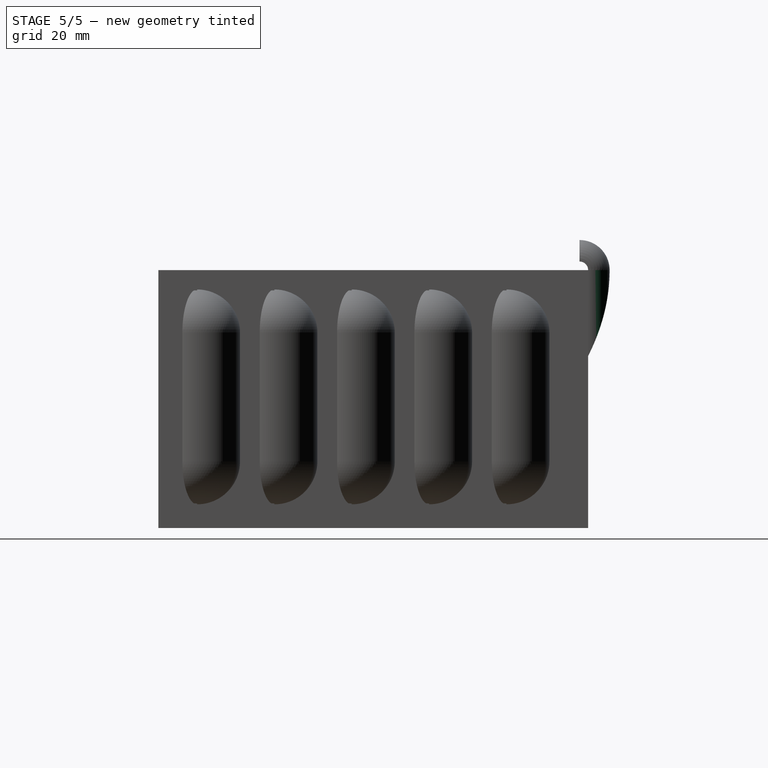
[diagram: stage 5 of 5 — right view after this stage's code; geometry added in this stage tinted green]
FEATURE [Sketcher::SketchObject] Sketch022
  ArcFitTolerance = 1e-06
  AttachmentSupport = -> [Pad011]
  ExternalGeometry = -> [Pad011]
  FullyConstrained = true
  MakeInternals = false
  MapMode = 5
  Placement = pos=(-43,0,0) rot=(0.57735,0.57735,0.57735;2.0944rad)
  sketch-geometry (8):
    g0: Circle [constr] CenterX=43 CenterY=52.5 CenterZ=0 NormalX=0 NormalY=0 NormalZ=1 AngleXU=0 Radius=1
    g1: Circle [constr] CenterX=43 CenterY=48 CenterZ=0 NormalX=0 NormalY=0 NormalZ=1 AngleXU=0 Radius=1
    g2: Circle [constr] CenterX=48 CenterY=45 CenterZ=0 NormalX=0 NormalY=0 NormalZ=1 AngleXU=0 Radius=1
    g3: BSplineCurve PolesCount=3 KnotsCount=2 Degree=2 IsPeriodic=0
    g4: GeomPoint [constr] X=43 Y=52.5 Z=0
    g5: GeomPoint [constr] X=48 Y=45 Z=0
    g6: LineSegment StartX=43 StartY=52.5 StartZ=0 EndX=43 EndY=45 EndZ=0
    g7: LineSegment StartX=48 StartY=45 StartZ=0 EndX=43 EndY=45 EndZ=0
  constraints (16):
    c: Weight(g0) = 1
    c: Equal(g0,g1)
    c: Equal(g0,g2)
    c: InternalAlignment(g0,g3)
    c: InternalAlignment(g1,g3)
    c: InternalAlignment(g2,g3)
    c: InternalAlignment(g4,g3)
    c: InternalAlignment(g5,g3)
    c: Symmetric(g-4,g-4,g0)
    c: PointOnObject(g1,g-4)
    c: Coincident(g2,g-3)
    c: DistanceY(g-4,g1) = 3
    c: Coincident(g6,g3)
    c: Coincident(g6,g-4)
    c: Coincident(g7,g3)
    c: Coincident(g7,g6)
FEATURE [PartDesign::Pocket] Pocket007
  BaseFeature = -> Pad011
  Direction = (-1,0,0)
  Length = 5
  Length2 = 5
  Profile = -> Sketch022
  ReferenceAxis = -> Sketch022 [N_Axis]
  Refine = true
  Suppressed = false
  Type = 0
FEATURE [Sketcher::SketchObject] Sketch023
  ArcFitTolerance = 1e-06
  AttachmentSupport = -> [Pocket007]
  ExternalGeometry = -> [Pocket007]
  FullyConstrained = true
  MakeInternals = false
  MapMode = 5
  Placement = pos=(43,0,0) rot=(0.57735,-0.57735,-0.57735;2.0944rad)
  sketch-geometry (8):
    g0: Circle [constr] CenterX=-48 CenterY=45 CenterZ=0 NormalX=0 NormalY=0 NormalZ=1 AngleXU=0 Radius=1
    g1: Circle [constr] CenterX=-43 CenterY=48 CenterZ=0 NormalX=0 NormalY=0 NormalZ=1 AngleXU=0 Radius=1
    g2: Circle [constr] CenterX=-43 CenterY=52.5 CenterZ=0 NormalX=0 NormalY=0 NormalZ=1 AngleXU=0 Radius=1
    g3: BSplineCurve PolesCount=3 KnotsCount=2 Degree=2 IsPeriodic=0
    g4: GeomPoint [constr] X=-48 Y=45 Z=0
    g5: GeomPoint [constr] X=-43 Y=52.5 Z=0
    g6: LineSegment StartX=-43 StartY=52.5 StartZ=0 EndX=-43 EndY=45 EndZ=0
    g7: LineSegment StartX=-43 StartY=45 StartZ=0 EndX=-48 EndY=45 EndZ=0
  constraints (16):
    c: Weight(g0) = 1
    c: Equal(g0,g1)
    c: Equal(g0,g2)
    c: InternalAlignment(g0,g3)
    c: InternalAlignment(g1,g3)
    c: InternalAlignment(g2,g3)
    c: InternalAlignment(g4,g3)
    c: InternalAlignment(g5,g3)
    c: Coincident(g0,g-4)
    c: PointOnObject(g1,g-3)
    c: Symmetric(g-3,g-3,g2)
    c: DistanceY(g-3,g1) = 3
    c: Coincident(g6,g3)
    c: Coincident(g6,g-3)
    c: Coincident(g7,g6)
    c: Coincident(g7,g3)
FEATURE [PartDesign::Pocket] Pocket008
  BaseFeature = -> Pocket007
  Direction = (1,0,0)
  Length = 5
  Length2 = 5
  Profile = -> Sketch023
  ReferenceAxis = -> Sketch023 [N_Axis]
  Refine = true
  Suppressed = false
  Type = 0
FEATURE [Sketcher::SketchObject] Sketch024
  ArcFitTolerance = 1e-06
  AttachmentSupport = -> [Pocket008]
  ExternalGeometry = -> [Pocket008]
  FullyConstrained = true
  MakeInternals = false
  MapMode = 5
  Placement = pos=(43,0,0) rot=(0.57735,-0.57735,-0.57735;2.0944rad)
  sketch-geometry (8):
    g0: Circle [constr] CenterX=48 CenterY=45 CenterZ=0 NormalX=0 NormalY=0 NormalZ=1 AngleXU=0 Radius=1
    g1: Circle [constr] CenterX=43 CenterY=48 CenterZ=0 NormalX=0 NormalY=0 NormalZ=1 AngleXU=0 Radius=1
    g2: Circle [constr] CenterX=43 CenterY=52.5 CenterZ=0 NormalX=0 NormalY=0 NormalZ=1 AngleXU=0 Radius=1
    g3: BSplineCurve PolesCount=3 KnotsCount=2 Degree=2 IsPeriodic=0
    g4: GeomPoint [constr] X=48 Y=45 Z=0
    g5: GeomPoint [constr] X=43 Y=52.5 Z=0
    g6: LineSegment StartX=43 StartY=52.5 StartZ=0 EndX=43 EndY=45 EndZ=0
    g7: LineSegment StartX=43 StartY=45 StartZ=0 EndX=48 EndY=45 EndZ=0
  constraints (16):
    c: Weight(g0) = 1
    c: Equal(g0,g1)
    c: Equal(g0,g2)
    c: InternalAlignment(g0,g3)
    c: InternalAlignment(g1,g3)
    c: InternalAlignment(g2,g3)
    c: InternalAlignment(g4,g3)
    c: InternalAlignment(g5,g3)
    c: Coincident(g0,g-3)
    c: PointOnObject(g1,g-4)
    c: Symmetric(g-4,g-4,g2)
    c: DistanceY(g-4,g1) = 3
    c: Coincident(g6,g3)
    c: Coincident(g6,g-4)
    c: Coincident(g7,g6)
    c: Coincident(g7,g3)
FEATURE [PartDesign::Pocket] Pocket009
  BaseFeature = -> Pocket008
  Direction = (1,0,0)
  Length = 5
  Length2 = 5
  Profile = -> Sketch024
  ReferenceAxis = -> Sketch024 [N_Axis]
  Refine = true
  Suppressed = false
  Type = 0
FEATURE [Sketcher::SketchObject] Sketch025
  ArcFitTolerance = 1e-06
  AttachmentSupport = -> [Pocket009]
  ExternalGeometry = -> [Pocket009]
  FullyConstrained = true
  MakeInternals = false
  MapMode = 5
  Placement = pos=(-43,0,0) rot=(0.57735,0.57735,0.57735;2.0944rad)
  sketch-geometry (8):
    g0: Circle [constr] CenterX=-48 CenterY=45 CenterZ=0 NormalX=0 NormalY=0 NormalZ=1 AngleXU=0 Radius=1
    g1: Circle [constr] CenterX=-43 CenterY=48 CenterZ=0 NormalX=0 NormalY=0 NormalZ=1 AngleXU=0 Radius=1
    g2: Circle [constr] CenterX=-43 CenterY=52.5 CenterZ=0 NormalX=0 NormalY=0 NormalZ=1 AngleXU=0 Radius=1
    g3: BSplineCurve PolesCount=3 KnotsCount=2 Degree=2 IsPeriodic=0
    g4: GeomPoint [constr] X=-48 Y=45 Z=0
    g5: GeomPoint [constr] X=-43 Y=52.5 Z=0
    g6: LineSegment StartX=-48 StartY=45 StartZ=0 EndX=-43 EndY=45 EndZ=0
    g7: LineSegment StartX=-43 StartY=45 StartZ=0 EndX=-43 EndY=52.5 EndZ=0
  constraints (16):
    c: Weight(g0) = 1
    c: Equal(g0,g1)
    c: Equal(g0,g2)
    c: InternalAlignment(g0,g3)
    c: InternalAlignment(g1,g3)
    c: InternalAlignment(g2,g3)
    c: InternalAlignment(g4,g3)
    c: InternalAlignment(g5,g3)
    c: Coincident(g0,g-3)
    c: PointOnObject(g1,g-4)
    c: Symmetric(g-4,g-4,g2)
    c: DistanceY(g-4,g1) = 3
    c: Coincident(g6,g3)
    c: Coincident(g6,g-4)
    c: Coincident(g7,g6)
    c: Coincident(g7,g3)
FEATURE [PartDesign::Pocket] Pocket010
  BaseFeature = -> Pocket009
  Direction = (-1,0,0)
  Length = 5
  Length2 = 5
  Profile = -> Sketch025
  ReferenceAxis = -> Sketch025 [N_Axis]
  Refine = true
  Suppressed = false
  Type = 0
FEATURE [Sketcher::SketchObject] Sketch026
  ArcFitTolerance = 1e-06
  AttachmentSupport = -> [Pocket010]
  ExternalGeometry = -> [Pocket010]
  FullyConstrained = true
  MakeInternals = false
  MapMode = 5
  Placement = pos=(0,0,60) rot=(0,0,1;0rad)
  sketch-geometry (4):
    g0: Circle CenterX=-45.5 CenterY=45.5 CenterZ=0 NormalX=0 NormalY=0 NormalZ=1 AngleXU=0 Radius=1.5
    g1: Circle CenterX=45.5 CenterY=45.5 CenterZ=0 NormalX=0 NormalY=0 NormalZ=1 AngleXU=0 Radius=1.5
    g2: Circle CenterX=-45.5 CenterY=-45.5 CenterZ=0 NormalX=0 NormalY=0 NormalZ=1 AngleXU=0 Radius=1.5
    g3: Circle CenterX=45.5 CenterY=-45.5 CenterZ=0 NormalX=0 NormalY=0 NormalZ=1 AngleXU=0 Radius=1.5
  constraints (12):
    c: Diameter(g0) = 3
    c: Distance(g0,g-3) = 2.5
    c: Distance(g0,g-4) = 2.5
    c: Horizontal(g1,g0)
    c: Horizontal(g2,g3)
    c: Vertical(g3,g1)
    c: Vertical(g2,g0)
    c: Distance(g1,g-5) = 2.5
    c: Distance(g2,g-6) = 2.5
    c: Equal(g0,g1)
    c: Equal(g1,g3)
    c: Equal(g3,g2)
FEATURE [PartDesign::Pocket] Pocket011
  BaseFeature = -> Pocket010
  Direction = (0,0,-1)
  Length = 12
  Length2 = 5
  Profile = -> Sketch026
  ReferenceAxis = -> Sketch026 [N_Axis]
  Refine = true
  Suppressed = false
  Type = 0
FEATURE [PartDesign::Pocket] Pocket012
  BaseFeature = -> Pocket011
  Direction = (0,0,-1)
  Length = 20
  Length2 = 5
  Profile = -> Pocket011 [Face9,Face7]
  Refine = true
  Suppressed = false
  Type = 0
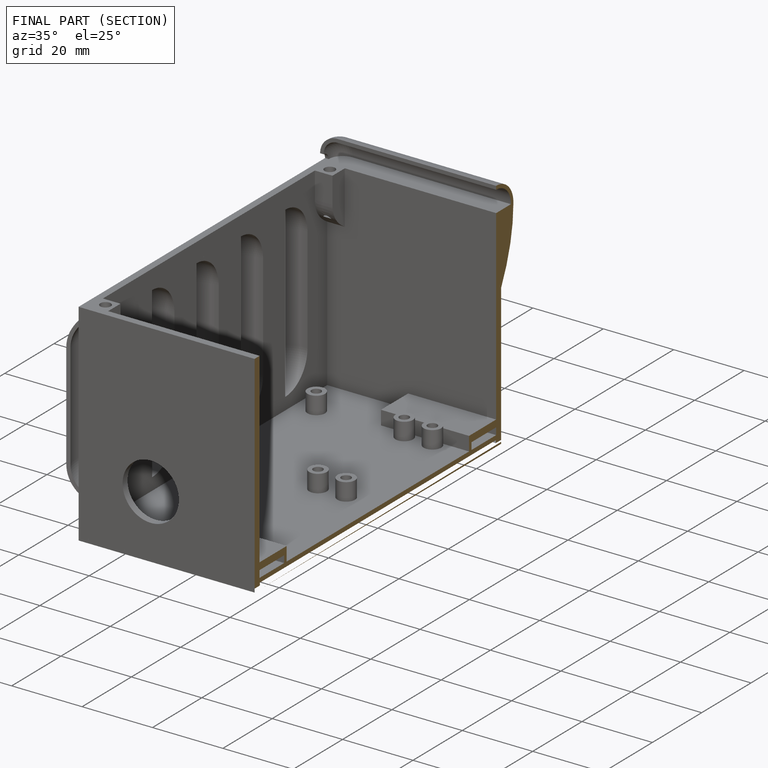
[diagram: finished part — half-section view (interior)]
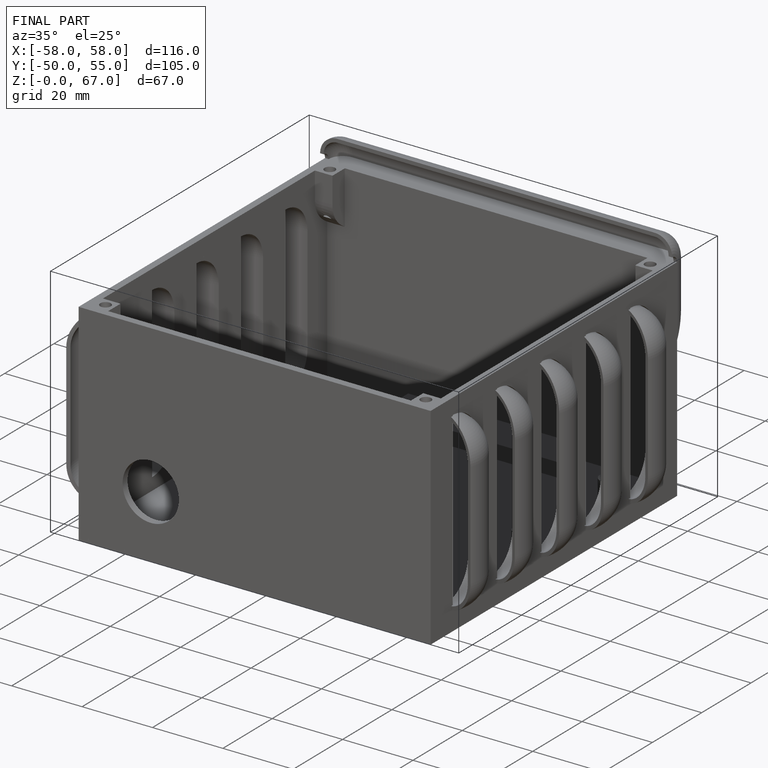
[diagram: finished part — iso view with bounding-box wireframe]
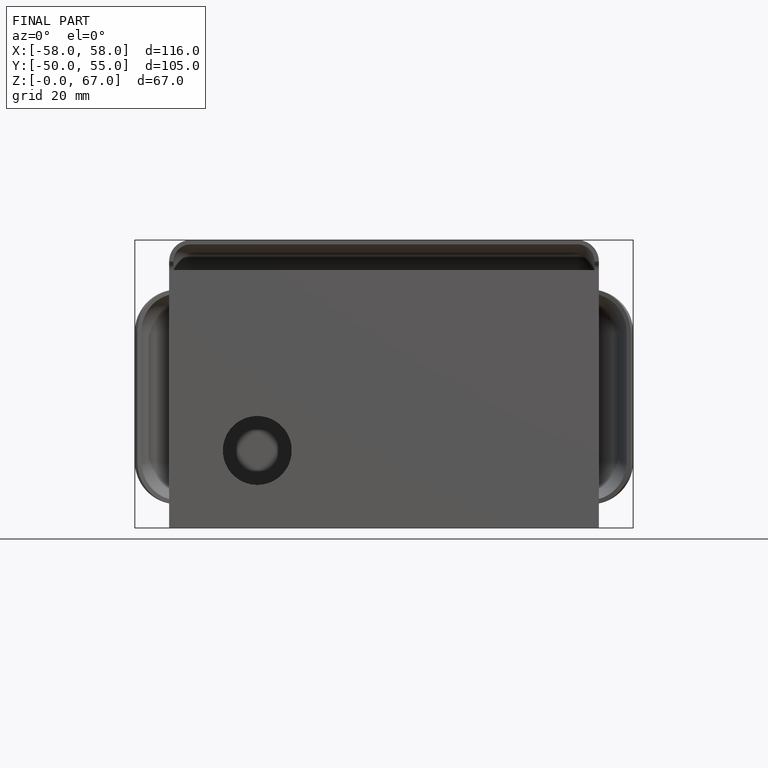
[diagram: finished part — front view with bounding-box wireframe]
